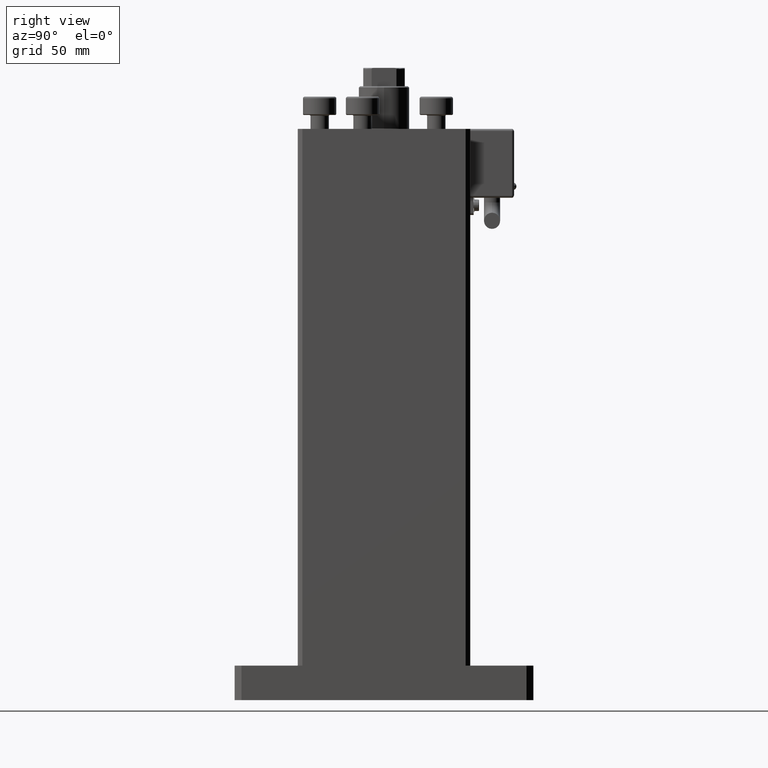
[diagram: clean part render]
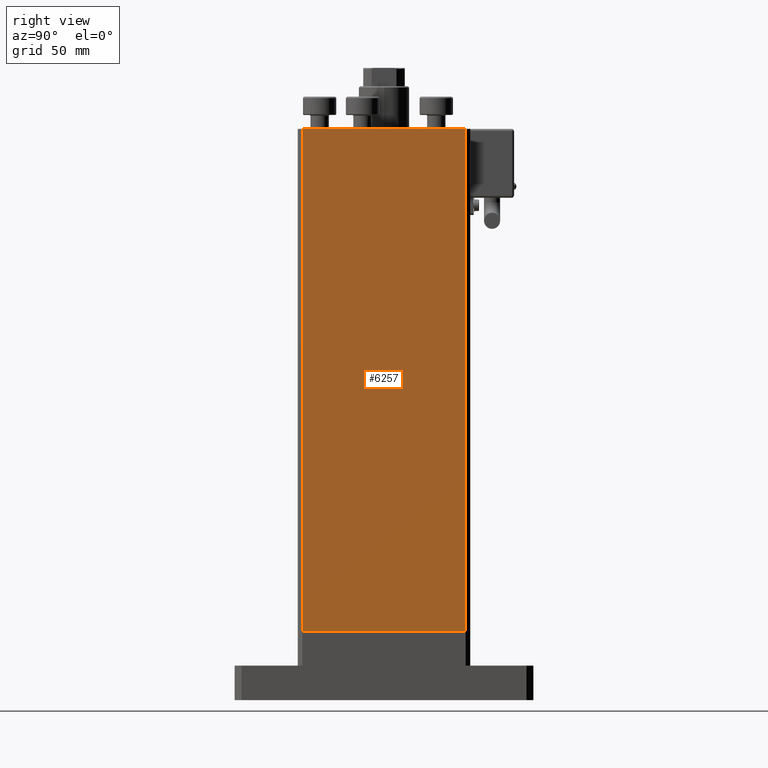
[diagram: same view with one face highlighted and labeled with its STEP entity id]
A machine part, right view. The second image highlights one B-rep face of the part: STEP entity #6257.
In plain terms, the highlighted planar face has unit normal (1, -0, 0).
Its self-contained STEP definition (entity closure, byte-faithful):
#100 = VECTOR ( 'NONE', #34010, 1000.000000000000000 ) ;
#142 = EDGE_CURVE ( 'NONE', #47970, #3760, #1390, .T. ) ;
#1390 = LINE ( 'NONE', #32426, #50050 ) ;
#2401 = EDGE_CURVE ( 'NONE', #3760, #55306, #41993, .T. ) ;
#3760 = VERTEX_POINT ( 'NONE', #36469 ) ;
#4121 = CARTESIAN_POINT ( 'NONE',  ( 42.50000000000000711, 35.50000000000001421, 218.5000000000000000 ) ) ;
#5125 = DIRECTION ( 'NONE',  ( -2.931927001650941360E-16, -1.000000000000000000, 0.000000000000000000 ) ) ;
#6257 = ADVANCED_FACE ( 'NONE', ( #43119 ), #48233, .T. ) ;
#7326 = CARTESIAN_POINT ( 'NONE',  ( 42.50000000000000711, 35.50000000000001421, 218.5000000000000000 ) ) ;
#8819 = EDGE_CURVE ( 'NONE', #47970, #45695, #45834, .T. ) ;
#11153 = VECTOR ( 'NONE', #54356, 1000.000000000000000 ) ;
#12965 = VECTOR ( 'NONE', #5125, 1000.000000000000000 ) ;
#13571 = ORIENTED_EDGE ( 'NONE', *, *, #2401, .T. ) ;
#24934 = EDGE_LOOP ( 'NONE', ( #31500, #48388, #51753, #13571 ) ) ;
#27053 = LINE ( 'NONE', #35858, #12965 ) ;
#27865 = EDGE_CURVE ( 'NONE', #45695, #55306, #27053, .T. ) ;
#30321 = DIRECTION ( 'NONE',  ( 2.931927001650941360E-16, 1.000000000000000000, 0.000000000000000000 ) ) ;
#31500 = ORIENTED_EDGE ( 'NONE', *, *, #27865, .F. ) ;
#32426 = CARTESIAN_POINT ( 'NONE',  ( 42.50000000000000711, 35.50000000000001421, 218.5000000000000000 ) ) ;
#34010 = DIRECTION ( 'NONE',  ( -0.000000000000000000, -0.000000000000000000, -1.000000000000000000 ) ) ;
#35858 = CARTESIAN_POINT ( 'NONE',  ( 42.50000000000000711, 35.50000000000001421, 0.000000000000000000 ) ) ;
#36469 = CARTESIAN_POINT ( 'NONE',  ( 42.49999999999998579, -35.50000000000000711, 218.5000000000000000 ) ) ;
#41993 = LINE ( 'NONE', #47101, #100 ) ;
#43119 = FACE_OUTER_BOUND ( 'NONE', #24934, .T. ) ;
#45514 = DIRECTION ( 'NONE',  ( -2.931927001650941360E-16, -1.000000000000000000, 0.000000000000000000 ) ) ;
#45695 = VERTEX_POINT ( 'NONE', #52159 ) ;
#45708 = AXIS2_PLACEMENT_3D ( 'NONE', #4121, #56197, #30321 ) ;
#45834 = LINE ( 'NONE', #54632, #11153 ) ;
#47101 = CARTESIAN_POINT ( 'NONE',  ( 42.49999999999998579, -35.50000000000000711, 218.5000000000000000 ) ) ;
#47970 = VERTEX_POINT ( 'NONE', #7326 ) ;
#48233 = PLANE ( 'NONE',  #45708 ) ;
#48388 = ORIENTED_EDGE ( 'NONE', *, *, #8819, .F. ) ;
#49546 = CARTESIAN_POINT ( 'NONE',  ( 42.49999999999998579, -35.50000000000000711, 0.000000000000000000 ) ) ;
#50050 = VECTOR ( 'NONE', #45514, 1000.000000000000000 ) ;
#51753 = ORIENTED_EDGE ( 'NONE', *, *, #142, .T. ) ;
#52159 = CARTESIAN_POINT ( 'NONE',  ( 42.50000000000000711, 35.50000000000001421, 0.000000000000000000 ) ) ;
#54356 = DIRECTION ( 'NONE',  ( -0.000000000000000000, -0.000000000000000000, -1.000000000000000000 ) ) ;
#54632 = CARTESIAN_POINT ( 'NONE',  ( 42.50000000000000711, 35.50000000000001421, 218.5000000000000000 ) ) ;
#55306 = VERTEX_POINT ( 'NONE', #49546 ) ;
#56197 = DIRECTION ( 'NONE',  ( 1.000000000000000000, -2.931927001650941360E-16, 0.000000000000000000 ) ) ;